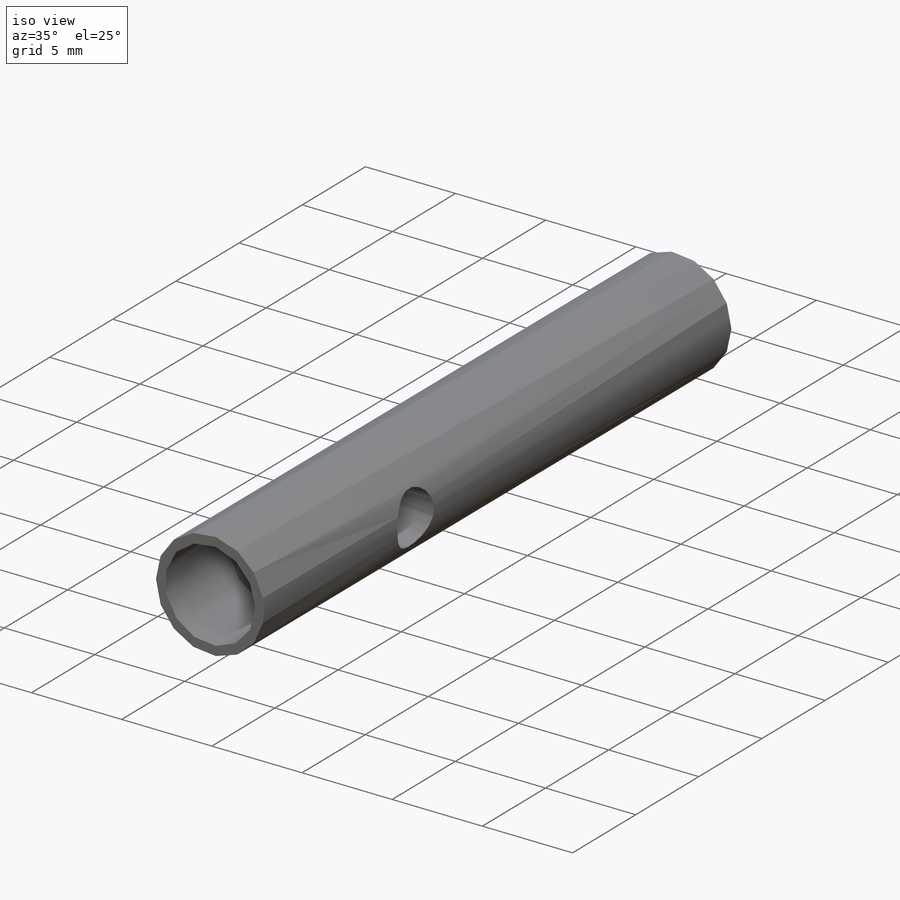
[diagram: iso view]
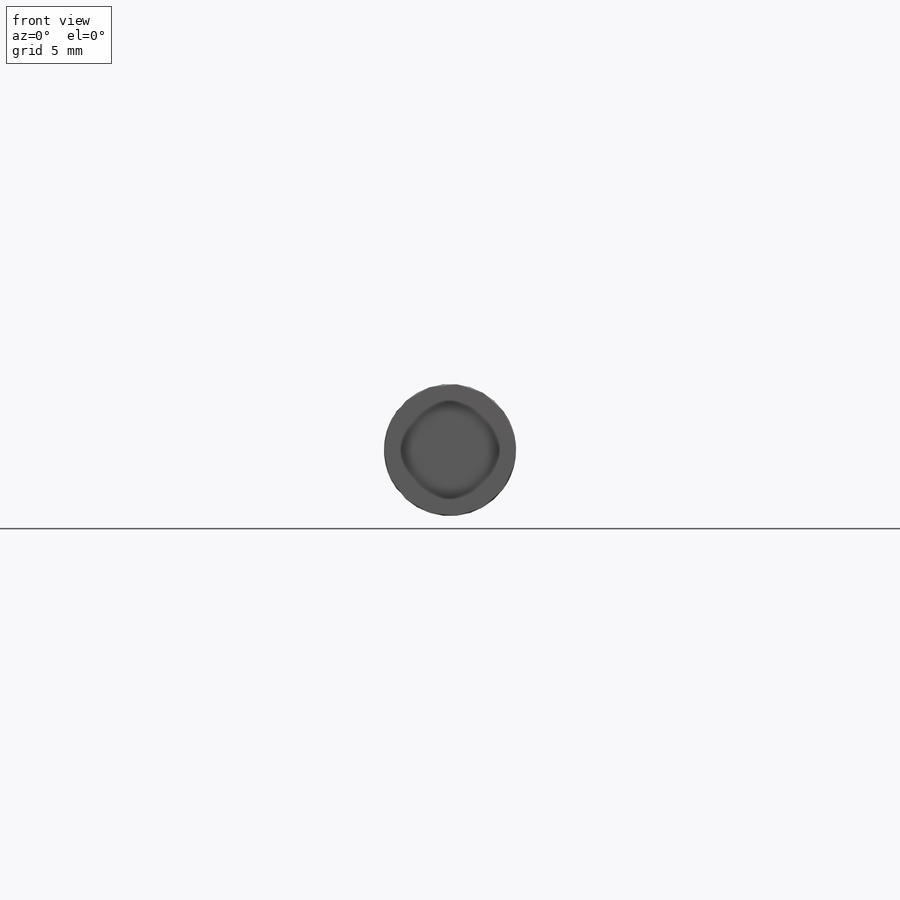
[diagram: front view]
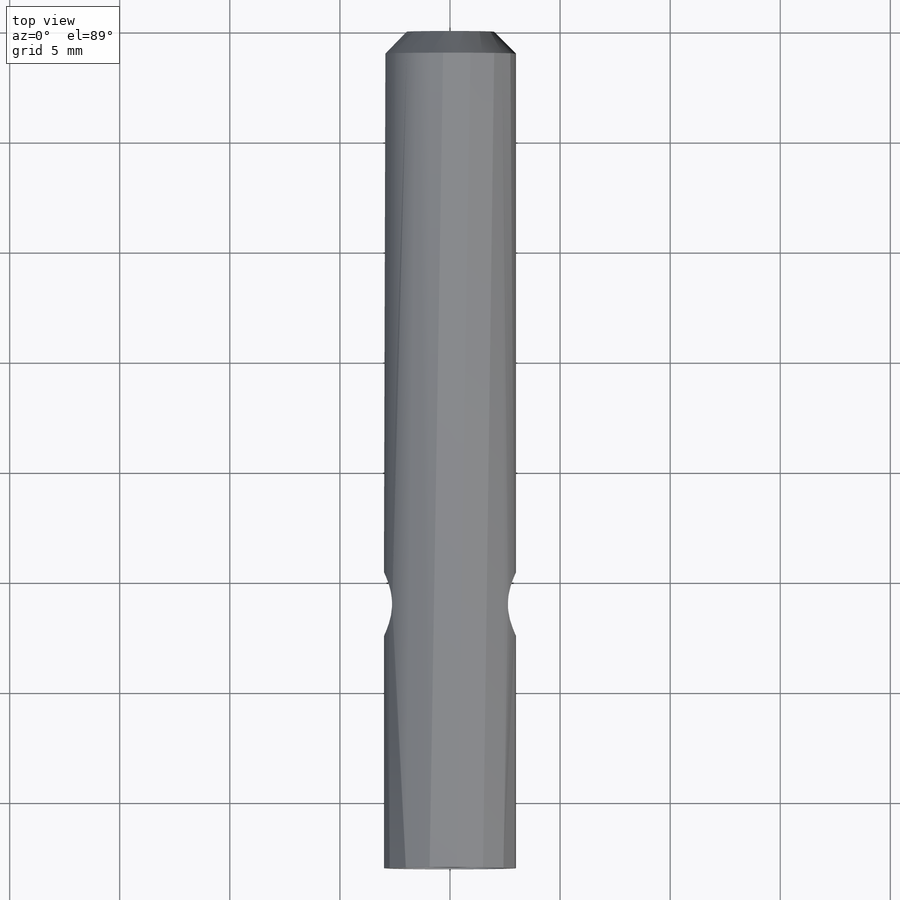
[diagram: top view]
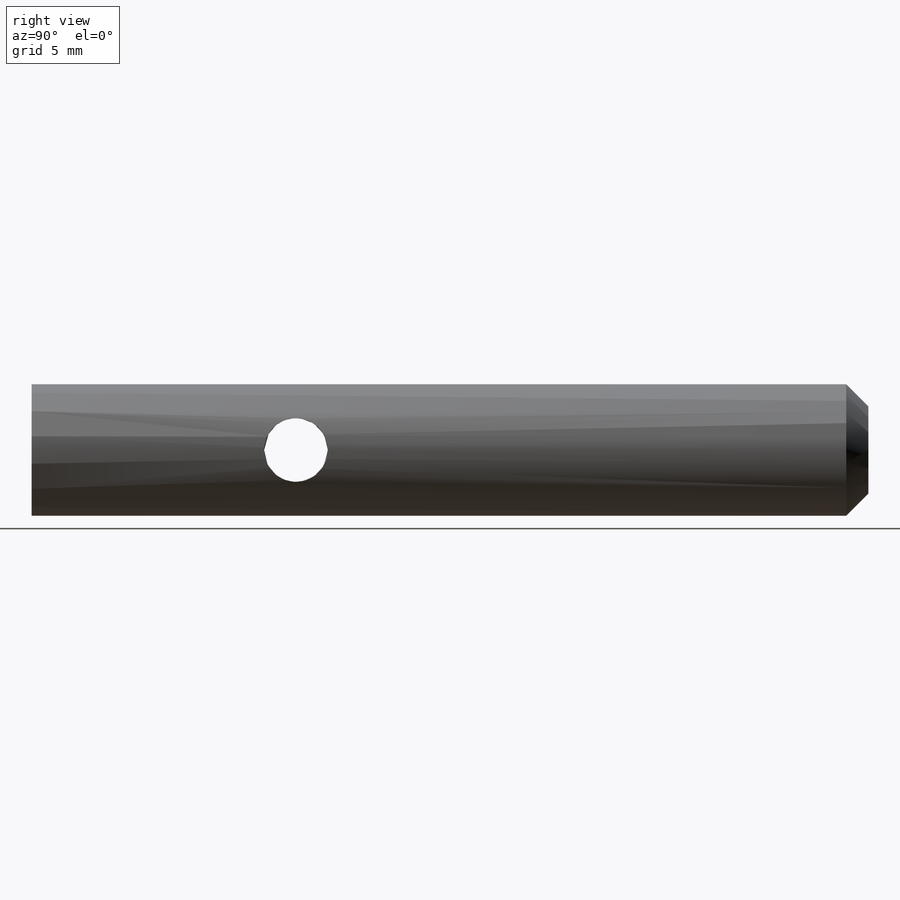
[diagram: right view]
SOLIDWORKS PART (.sldprt)
format: sldprt  version: not decoded by parser v0  size: 285,696 bytes
history: native  units: mm
features: sketch x5, plane x4, material x1, extrude x1, cut_extrude x1, chamfer x1, hole x1, thread x1 (+8 scaffold rows collapsed)
feature tree (23):
  scaffold x8  (default folders/planes/origin — collapsed)
  material  "Сплав 2024"
  plane  "Спереди"
  plane  "Сверху"
  plane  "Справа"
  sketch  "Эскиз1"  dims[D1=6.0mm]
  extrude  "Бобышка-Вытянуть1"  Depth=37mm
  sketch  "Эскиз2"  dims[D1=5.0mm]
  cut_extrude  "Вырез-Вытянуть1"  Depth=6mm
  chamfer  "Фаска1"  Distance=1mm Angle=45deg
  plane  "Плоскость1"
  sketch  "Эскиз3"  dims[c1.D1=12.0mm c1.D2=1.0mm c1.D3=37.0mm c2.D1=10.0mm]
  hole  "Отверстие обработанное метчиком M3.5x0.61"  [1 undecoded]
  sketch  "Эскиз5"
  sketch  "Эскиз4"  dims[hole-wizard template sketch: 59 standard entries collapsed; hole parameters kept: c18.Диаметр проходного сверла=2.9mm c18.Глубина проходного сверла=6.0mm]
  thread  "Отверстие резьбы1"  Diameter=3.5mm  [1 undecoded]
decode coverage: 8 of 10 modeling features carry decoded parameters
note: ~ marks probable driven/reference dimensions
note: 2 parameter values undecoded
note: suppression state not decoded; provenance and decode notes live in map.json
